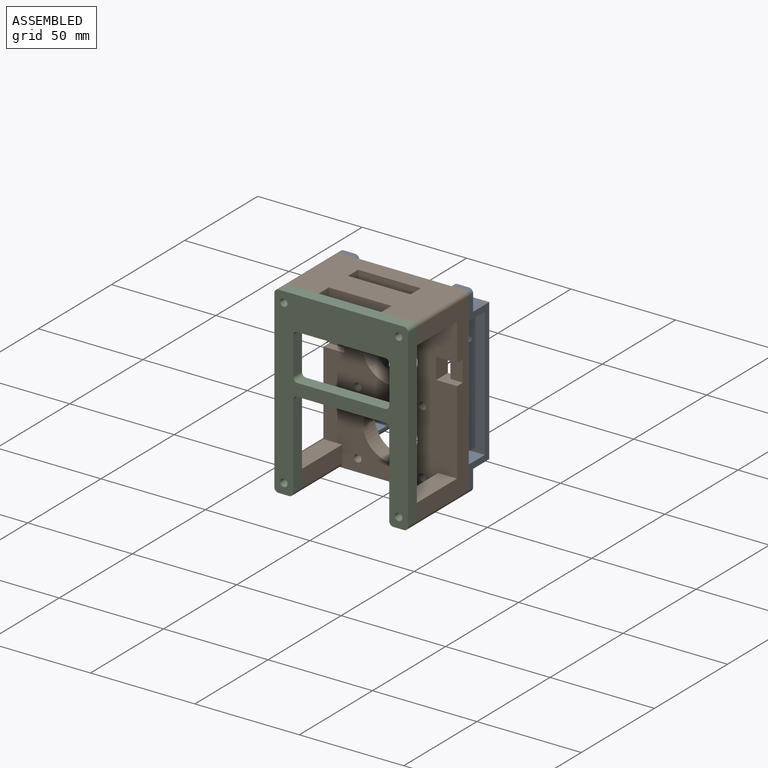
[diagram: assembled view]
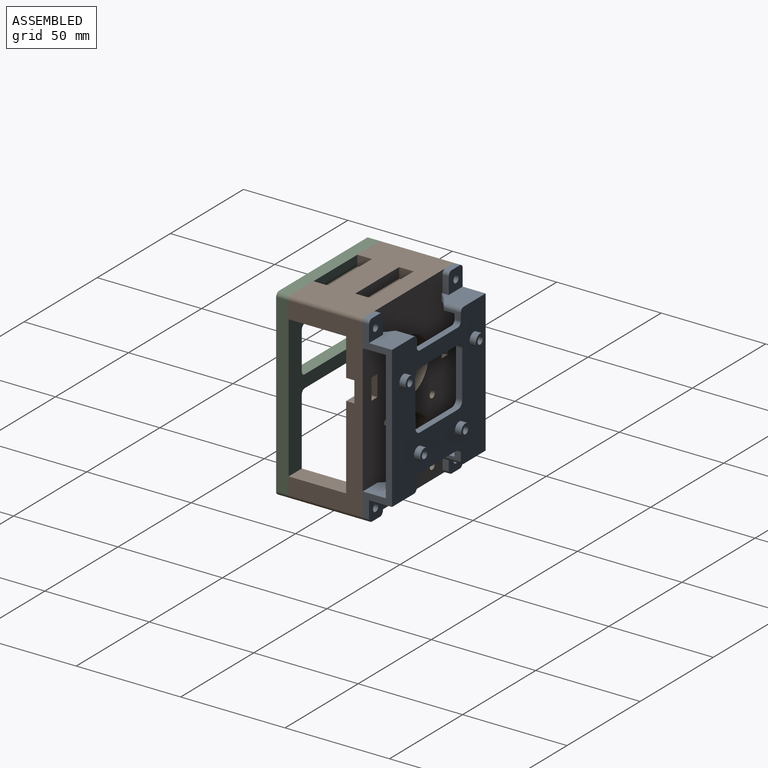
[diagram: assembled view, second angle]
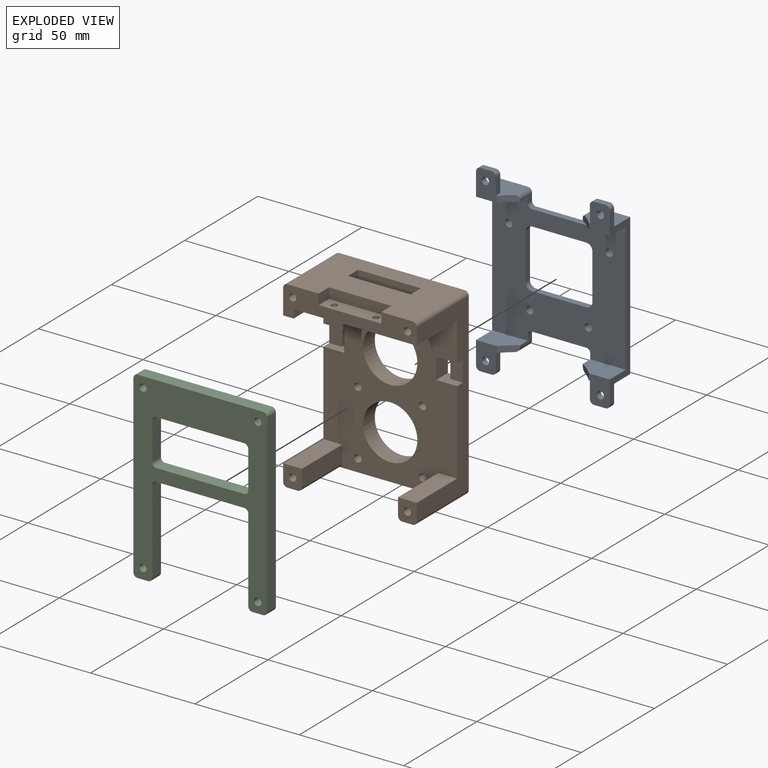
[diagram: exploded view]
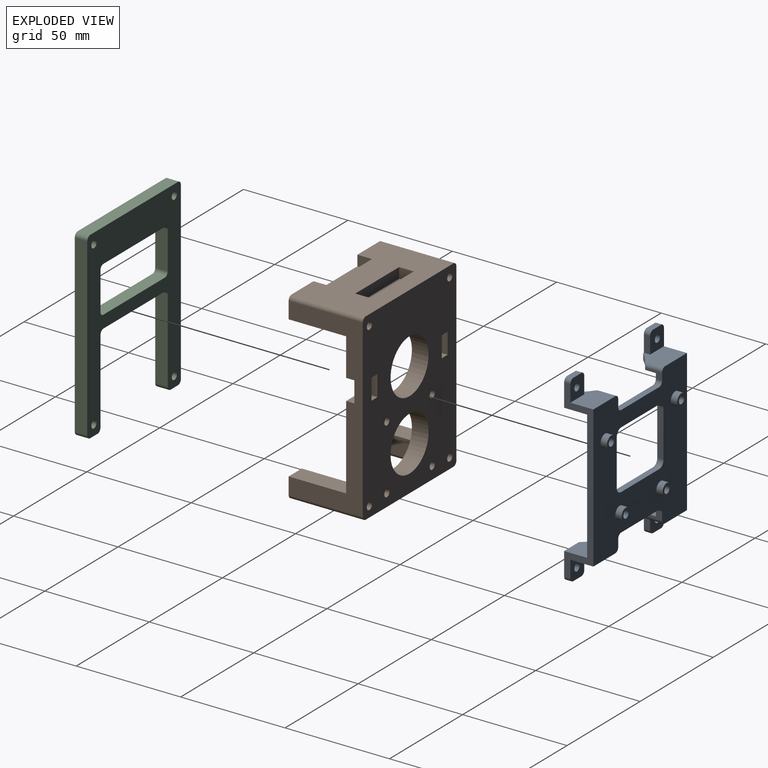
[diagram: exploded view, second angle]
ASSEMBLY  parts=3 mates=2
PART A: 78 faces, bbox 64x17x88 mm
  f0: plane 64x62mm, normal (0,1,0), area 2774.7mm2, adj f4,f5,f17,f19,f20,f21,f22,f23
  f1: plane 68x64mm, normal (0,-1,0), area 2900.6mm2, adj f2,f3,f16,f17,f18,f23,f34,f36
  f2: plane 15x14mm, normal (0,0,1), area 169.3mm2, adj f1,f8,f13,f23,f43,f47,f56
  f3: plane 15x14mm, normal (0,0,-1), area 169.3mm2, adj f1,f6,f9,f23,f29,f44,f59
  f4: plane 17x11mm, normal (0,0,-1), area 164.3mm2, adj f0,f7,f15,f17,f49
  f5: plane 17x11mm, normal (0,0,1), area 164.3mm2, adj f0,f6,f9,f23,f53
  f6: cylinder r=29.2mm len=7mm, axis (0,0,1), area 26.5mm2, adj f3,f5,f9,f53,f59
  f7: cylinder r=29.2mm len=7mm, axis (0,0,1), area 26.5mm2, adj f4,f15,f16,f49,f57
  f8: plane 13x10mm, normal (0,1,0), area 113.7mm2, adj f2,f23,f24,f27,f33,f43,f47,f64
  f9: plane 13x10mm, normal (0,1,0), area 113.7mm2, adj f3,f5,f6,f10,f23,f30,f44,f63
  f10: plane 5.5x3mm, normal (0,0,-1), area 16.5mm2, adj f9,f29,f63,f66
  f11: plane 10x9.5mm, normal (0,-1,0), area 83.7mm2, adj f17,f18,f28,f31,f45,f62,f67
  f12: plane 13x10mm, normal (0,1,0), area 113.7mm2, adj f17,f18,f25,f28,f31,f45,f46,f62
  f13: plane 10x9.5mm, normal (0,-1,0), area 83.7mm2, adj f2,f23,f27,f33,f43,f64,f69
  f14: plane 5.5x3mm, normal (0,0,1), area 16.5mm2, adj f15,f26,f65,f68
  f15: plane 13x10mm, normal (0,1,0), area 113.7mm2, adj f4,f7,f14,f16,f17,f32,f42,f65
  f16: plane 15x14mm, normal (0,0,1), area 169.3mm2, adj f1,f7,f15,f17,f26,f42,f57
  f17: plane 84x14mm, normal (-1,0,0), area 318mm2, adj f0,f1,f4,f11,f12,f15,f16,f18
  f18: plane 15x14mm, normal (0,0,-1), area 169.3mm2, adj f1,f11,f12,f17,f45,f46,f60
  f19: cylinder r=1.75mm len=6mm, axis (0,1,0), area 66mm2, adj f0,f35
  f20: cylinder r=1.75mm len=6mm, axis (0,1,0), area 66mm2, adj f0,f39
  f21: cylinder r=1.75mm len=6mm, axis (0,1,0), area 66mm2, adj f0,f41
  f22: cylinder r=1.75mm len=6mm, axis (0,1,0), area 66mm2, adj f0,f37
  f23: plane 84x14mm, normal (1,0,0), area 318mm2, adj f0,f1,f2,f3,f5,f8,f9,f13
  f24: plane 17x11mm, normal (0,0,-1), area 164.3mm2, adj f0,f8,f23,f47,f50
  f25: plane 17x11mm, normal (0,0,1), area 164.3mm2, adj f0,f12,f17,f46,f52
  f26: plane 10x9.5mm, normal (0,-1,0), area 83.7mm2, adj f14,f16,f17,f32,f42,f65,f68
  f27: plane 5.5x3mm, normal (0,0,1), area 16.5mm2, adj f8,f13,f64,f69
  f28: plane 5.5x3mm, normal (0,0,-1), area 16.5mm2, adj f11,f12,f62,f67
  f29: plane 10x9.5mm, normal (0,-1,0), area 83.7mm2, adj f3,f10,f23,f30,f44,f63,f66
  f30: cylinder r=1.75mm len=3.5mm, axis (0,-1,0), area 33mm2, adj f9,f29
  f31: cylinder r=1.75mm len=3.5mm, axis (0,-1,0), area 33mm2, adj f11,f12
  f32: cylinder r=1.75mm len=3.5mm, axis (0,-1,0), area 33mm2, adj f15,f26
  f33: cylinder r=1.75mm len=3.5mm, axis (0,-1,0), area 33mm2, adj f8,f13
  f34: cylinder r=3mm len=6mm, axis (0,1,0), area 56.5mm2, adj f1,f35
  f35: plane 6x6mm, normal (0,-1,0), area 18.7mm2, adj f19,f34
  f36: cylinder r=3mm len=6mm, axis (0,1,0), area 56.5mm2, adj f1,f37
  f37: plane 6x6mm, normal (0,-1,0), area 18.7mm2, adj f22,f36
  f38: cylinder r=3mm len=6mm, axis (0,1,0), area 56.5mm2, adj f1,f39
  f39: plane 6x6mm, normal (0,-1,0), area 18.7mm2, adj f20,f38
  f40: cylinder r=3mm len=6mm, axis (0,1,0), area 56.5mm2, adj f1,f41
  f41: plane 6x6mm, normal (0,-1,0), area 18.7mm2, adj f21,f40
  f42: plane 8x3mm, normal (1,0,0), area 24mm2, adj f15,f16,f26,f65
  f43: plane 8x3mm, normal (-1,0,0), area 24mm2, adj f2,f8,f13,f64
  f44: plane 8x3mm, normal (-1,0,0), area 24mm2, adj f3,f9,f29,f63
  f45: plane 8x3mm, normal (1,0,0), area 24mm2, adj f11,f12,f18,f62
  f46: cylinder r=29.2mm len=7mm, axis (0,0,1), area 26.5mm2, adj f12,f18,f25,f52,f60
  f47: cylinder r=29.2mm len=7mm, axis (0,0,1), area 26.5mm2, adj f2,f8,f24,f50,f56
  f48: plane 26x3mm, normal (0,0,1), area 78mm2, adj f0,f1,f54,f55
  f49: plane 8.15x3.5mm, normal (1,0,0), area 15.6mm2, adj f0,f1,f4,f7,f54,f57
  f50: plane 8.15x3.5mm, normal (-1,0,0), area 15.6mm2, adj f0,f1,f24,f47,f55,f56
  f51: plane 26x3mm, normal (0,0,-1), area 78mm2, adj f0,f1,f58,f61
  f52: plane 8.15x3.5mm, normal (1,0,0), area 15.6mm2, adj f0,f1,f25,f46,f60,f61
  f53: plane 8.15x3.5mm, normal (-1,0,0), area 15.6mm2, adj f0,f1,f5,f6,f58,f59
  f54: cylinder r=2mm len=3mm, axis (0,-1,0), area 9.4mm2, adj f0,f1,f48,f49
  f55: cylinder r=2mm len=3mm, axis (0,1,0), area 9.4mm2, adj f0,f1,f48,f50
  f56: cylinder r=2mm len=9.46mm, axis (0,1,0), area 27mm2, adj f1,f2,f47,f50
  f57: cylinder r=2mm len=9.46mm, axis (0,-1,0), area 27mm2, adj f1,f7,f16,f49
  f58: cylinder r=2mm len=3mm, axis (0,1,0), area 9.4mm2, adj f0,f1,f51,f53
  f59: cylinder r=2mm len=9.46mm, axis (0,1,0), area 27mm2, adj f1,f3,f6,f53
  f60: cylinder r=2mm len=9.46mm, axis (0,-1,0), area 27mm2, adj f1,f18,f46,f52
  f61: cylinder r=2mm len=3mm, axis (0,-1,0), area 9.4mm2, adj f0,f1,f51,f52
  f62: cylinder r=2mm len=3mm, axis (0,-1,0), area 9.4mm2, adj f11,f12,f28,f45
  f63: cylinder r=2mm len=3mm, axis (0,1,0), area 9.4mm2, adj f9,f10,f29,f44
  f64: cylinder r=2mm len=3mm, axis (0,-1,0), area 9.4mm2, adj f8,f13,f27,f43
  f65: cylinder r=2mm len=3mm, axis (0,1,0), area 9.4mm2, adj f14,f15,f26,f42
  f66: cylinder r=2mm len=3mm, axis (0,1,0), area 9.4mm2, adj f9,f10,f23,f29
  f67: cylinder r=2mm len=3mm, axis (0,-1,0), area 9.4mm2, adj f11,f12,f17,f28
  f68: cylinder r=2mm len=3mm, axis (0,-1,0), area 9.4mm2, adj f14,f15,f17,f26
  f69: cylinder r=2mm len=3mm, axis (0,1,0), area 9.4mm2, adj f8,f13,f23,f27
  f70: plane 26x3mm, normal (0,0,-1), area 78mm2, adj f0,f1,f74,f77
  f71: plane 22x3mm, normal (1,0,0), area 66mm2, adj f0,f1,f74,f75
  f72: plane 26x3mm, normal (0,0,1), area 78mm2, adj f0,f1,f75,f76
  f73: plane 22x3mm, normal (-1,0,0), area 66mm2, adj f0,f1,f76,f77
  f74: cylinder r=3mm len=3mm, axis (0,-1,0), area 14.1mm2, adj f0,f1,f70,f71
  f75: cylinder r=3mm len=3mm, axis (0,1,0), area 14.1mm2, adj f0,f1,f71,f72
  f76: cylinder r=3mm len=3mm, axis (0,-1,0), area 14.1mm2, adj f0,f1,f72,f73
  f77: cylinder r=3mm len=3mm, axis (0,1,0), area 14.1mm2, adj f0,f1,f70,f73
PART B: 55 faces, bbox 64x35.5x88 mm
  f0: plane 78x64mm, normal (0,-1,0), area 3493.4mm2, adj f1,f9,f10,f11,f14,f15,f18,f20
  f1: plane 84x35.5mm, normal (1,0,0), area 1072mm2, adj f0,f2,f4,f11,f18,f21,f37,f39
  f2: plane 88x64mm, normal (0,1,0), area 4409.7mm2, adj f1,f3,f9,f10,f12,f13,f16,f19
  f3: plane 60x35.5mm, normal (0,0,1), area 1710mm2, adj f2,f4,f23,f24,f25,f26,f28,f29
  f4: plane 64x14mm, normal (0,-1,0), area 489mm2, adj f1,f3,f9,f11,f12,f13,f27,f28
  f5: cylinder r=1.5mm len=5mm, axis (0,0,1), area 47.1mm2, adj f11,f22
  f6: cylinder r=1.5mm len=5mm, axis (0,0,1), area 47.1mm2, adj f11,f27
  f7: cylinder r=1.5mm len=5mm, axis (0,0,1), area 47.1mm2, adj f11,f27
  f8: cylinder r=1.5mm len=5mm, axis (0,0,1), area 47.1mm2, adj f11,f22
  f9: plane 84x35.5mm, normal (-1,0,0), area 1182mm2, adj f0,f2,f4,f15,f17,f40,f42,f46
  f10: plane 60x35.5mm, normal (0,0,-1), area 755mm2, adj f0,f2,f17,f21,f44,f45,f47,f48
  f11: plane 59x27.5mm, normal (0,0,-1), area 1594.2mm2, adj f0,f1,f4,f5,f6,f7,f8,f50
  f12: cylinder r=1.75mm len=35.5mm, axis (0,1,0), area 390.3mm2, adj f2,f4
  f13: cylinder r=1.75mm len=35.5mm, axis (0,1,0), area 390.3mm2, adj f2,f4
  f14: plane 27.5x8mm, normal (1,0,0), area 220mm2, adj f0,f15,f17,f45
  f15: plane 27.5x9mm, normal (0,0,1), area 247.5mm2, adj f0,f9,f14,f17
  f16: cylinder r=1.75mm len=35.5mm, axis (0,1,0), area 390.3mm2, adj f2,f17
  f17: plane 10x9mm, normal (0,-1,0), area 78.7mm2, adj f9,f10,f14,f15,f16,f45,f47
  f18: plane 27.5x9mm, normal (0,0,1), area 247.5mm2, adj f0,f1,f20,f21
  f19: cylinder r=1.75mm len=35.5mm, axis (0,1,0), area 390.3mm2, adj f2,f21
  f20: plane 27.5x8mm, normal (-1,0,0), area 220mm2, adj f0,f18,f21,f44
  f21: plane 10x9mm, normal (0,-1,0), area 78.7mm2, adj f1,f10,f18,f19,f20,f44,f48
  f22: plane 30x7mm, normal (0,0,1), area 195.9mm2, adj f5,f8,f23,f24,f25,f26
  f23: plane 7x5mm, normal (1,0,0), area 35mm2, adj f3,f22,f24,f26
  f24: plane 30x5mm, normal (0,1,0), area 150mm2, adj f3,f22,f23,f25
  f25: plane 7x5mm, normal (-1,0,0), area 35mm2, adj f3,f22,f24,f26
  f26: plane 30x5mm, normal (0,-1,0), area 150mm2, adj f3,f22,f23,f25
  f27: plane 30x7mm, normal (0,0,1), area 195.9mm2, adj f4,f6,f7,f28,f29,f30
  f28: plane 7x5mm, normal (-1,0,0), area 35mm2, adj f3,f4,f27,f29
  f29: plane 30x5mm, normal (0,-1,0), area 150mm2, adj f3,f27,f28,f30
  f30: plane 7x5mm, normal (1,0,0), area 35mm2, adj f3,f4,f27,f29
  f31: cylinder r=1.75mm len=8mm, axis (0,-1,0), area 88mm2, adj f0,f2
  f32: cylinder r=1.75mm len=8mm, axis (0,-1,0), area 88mm2, adj f0,f2
  f33: cylinder r=1.75mm len=8mm, axis (0,-1,0), area 88mm2, adj f0,f2
  f34: cylinder r=1.75mm len=8mm, axis (0,-1,0), area 88mm2, adj f0,f2
  f35: cylinder r=13mm len=26mm, axis (0,-1,0), area 653.5mm2, adj f0,f2
  f36: plane 10x4mm, normal (-1,0,0), area 40mm2, adj f2,f37,f39,f53
  f37: plane 10x8mm, normal (0,0,-1), area 56mm2, adj f0,f1,f2,f36,f38,f53
  f38: plane 10x8mm, normal (1,0,0), area 80mm2, adj f0,f2,f37,f39
  f39: plane 10x8mm, normal (0,0,1), area 56mm2, adj f0,f1,f2,f36,f38,f53
  f40: plane 10x8mm, normal (0,0,-1), area 56mm2, adj f0,f2,f9,f41,f43,f54
  f41: plane 10x4mm, normal (1,0,0), area 40mm2, adj f2,f40,f42,f54
  f42: plane 10x8mm, normal (0,0,1), area 56mm2, adj f0,f2,f9,f41,f43,f54
  f43: plane 10x8mm, normal (-1,0,0), area 80mm2, adj f0,f2,f40,f42
  f44: cylinder r=2mm len=27.5mm, axis (0,-1,0), area 86.4mm2, adj f0,f10,f20,f21
  f45: cylinder r=2mm len=27.5mm, axis (0,1,0), area 86.4mm2, adj f0,f10,f14,f17
  f46: cylinder r=2mm len=35.5mm, axis (0,-1,0), area 111.5mm2, adj f2,f3,f4,f9
  f47: cylinder r=2mm len=35.5mm, axis (0,1,0), area 111.5mm2, adj f2,f9,f10,f17
  f48: cylinder r=2mm len=35.5mm, axis (0,-1,0), area 111.5mm2, adj f1,f2,f10,f21
  f49: cylinder r=2mm len=35.5mm, axis (0,1,0), area 111.5mm2, adj f1,f2,f3,f4
  f50: plane 27.5x4mm, normal (1,0,0), area 110mm2, adj f0,f4,f11,f51
  f51: plane 27.5x5mm, normal (0,0,-1), area 137.5mm2, adj f0,f4,f9,f50
  f52: cylinder r=13mm len=26mm, axis (0,-1,0), area 653.5mm2, adj f0,f2
  f53: plane 10x6mm, normal (0,-1,0), area 60mm2, adj f1,f36,f37,f39
  f54: plane 10x6mm, normal (0,-1,0), area 60mm2, adj f9,f40,f41,f42
PART C: 30 faces, bbox 64x6x88 mm
  f0: plane 6x5mm, normal (0,0,-1), area 30mm2, adj f1,f2,f25,f28
  f1: plane 88x64mm, normal (0,-1,0), area 2557.5mm2, adj f0,f3,f4,f5,f6,f7,f8,f9
  f2: plane 88x64mm, normal (0,1,0), area 2557.5mm2, adj f0,f3,f4,f5,f6,f7,f8,f9
  f3: plane 60x6mm, normal (0,0,1), area 360mm2, adj f1,f2,f26,f29
  f4: plane 84x6mm, normal (-1,0,0), area 504mm2, adj f1,f2,f26,f27
  f5: plane 6x5mm, normal (0,0,-1), area 30mm2, adj f1,f2,f22,f27
  f6: plane 84x6mm, normal (1,0,0), area 504mm2, adj f1,f2,f28,f29
  f7: plane 40x6mm, normal (-1,0,0), area 240mm2, adj f1,f2,f24,f25
  f8: plane 42x6mm, normal (0,0,-1), area 252mm2, adj f1,f2,f23,f24
  f9: plane 40x6mm, normal (1,0,0), area 240mm2, adj f1,f2,f22,f23
  f10: plane 42x6mm, normal (0,0,-1), area 252mm2, adj f1,f2,f18,f21
  f11: plane 18x6mm, normal (1,0,0), area 108mm2, adj f1,f2,f20,f21
  f12: plane 42x6mm, normal (0,0,1), area 252mm2, adj f1,f2,f19,f20
  f13: plane 18x6mm, normal (-1,0,0), area 108mm2, adj f1,f2,f18,f19
  f14: cylinder r=1.75mm len=6mm, axis (0,-1,0), area 66mm2, adj f1,f2
  f15: cylinder r=1.75mm len=6mm, axis (0,-1,0), area 66mm2, adj f1,f2
  f16: cylinder r=1.75mm len=6mm, axis (0,-1,0), area 66mm2, adj f1,f2
  f17: cylinder r=1.75mm len=6mm, axis (0,-1,0), area 66mm2, adj f1,f2
  f18: cylinder r=2mm len=6mm, axis (0,-1,0), area 18.8mm2, adj f1,f2,f10,f13
  f19: cylinder r=2mm len=6mm, axis (0,1,0), area 18.8mm2, adj f1,f2,f12,f13
  f20: cylinder r=2mm len=6mm, axis (0,-1,0), area 18.8mm2, adj f1,f2,f11,f12
  f21: cylinder r=2mm len=6mm, axis (0,1,0), area 18.8mm2, adj f1,f2,f10,f11
  f22: cylinder r=2mm len=6mm, axis (0,1,0), area 18.8mm2, adj f1,f2,f5,f9
  f23: cylinder r=2mm len=6mm, axis (0,1,0), area 18.8mm2, adj f1,f2,f8,f9
  f24: cylinder r=2mm len=6mm, axis (0,-1,0), area 18.8mm2, adj f1,f2,f7,f8
  f25: cylinder r=2mm len=6mm, axis (0,-1,0), area 18.8mm2, adj f0,f1,f2,f7
  f26: cylinder r=2mm len=6mm, axis (0,-1,0), area 18.8mm2, adj f1,f2,f3,f4
  f27: cylinder r=2mm len=6mm, axis (0,1,0), area 18.8mm2, adj f1,f2,f4,f5
  f28: cylinder r=2mm len=6mm, axis (0,-1,0), area 18.8mm2, adj f0,f1,f2,f6
  f29: cylinder r=2mm len=6mm, axis (0,1,0), area 18.8mm2, adj f1,f2,f3,f6
PLACE A rot(axis=(0,0,1),180deg) t=(-3.11,28.42,2.2)mm
PLACE B t=(-3.11,17.42,2.2)mm
PLACE C t=(-3.11,-18.08,2.2)mm
MATE fastened C.f17 <-> B.f12  axis (0,1,0) through (-30.61,-18.08,41.2)mm
MATE fastened A.f33 <-> B.f12  axis (0,-1,0) through (-30.61,17.42,41.2)mm
